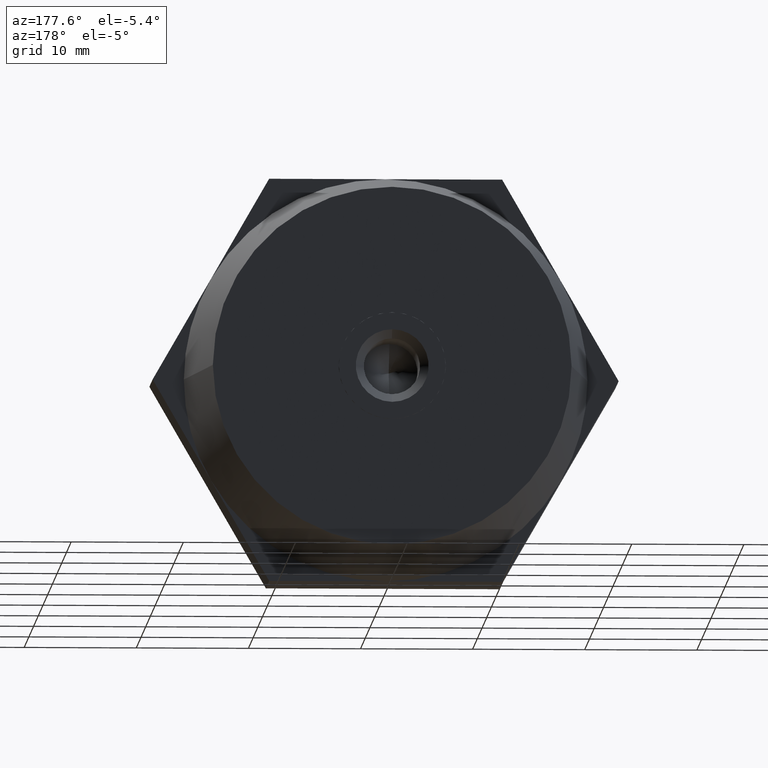
[diagram: clean part render]
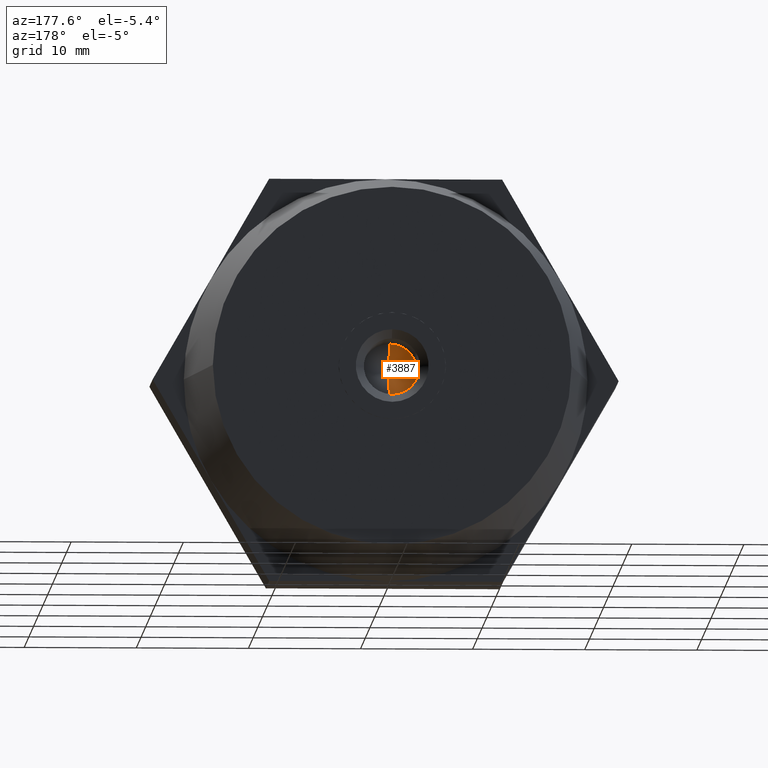
[diagram: same view with one face highlighted and labeled with its STEP entity id]
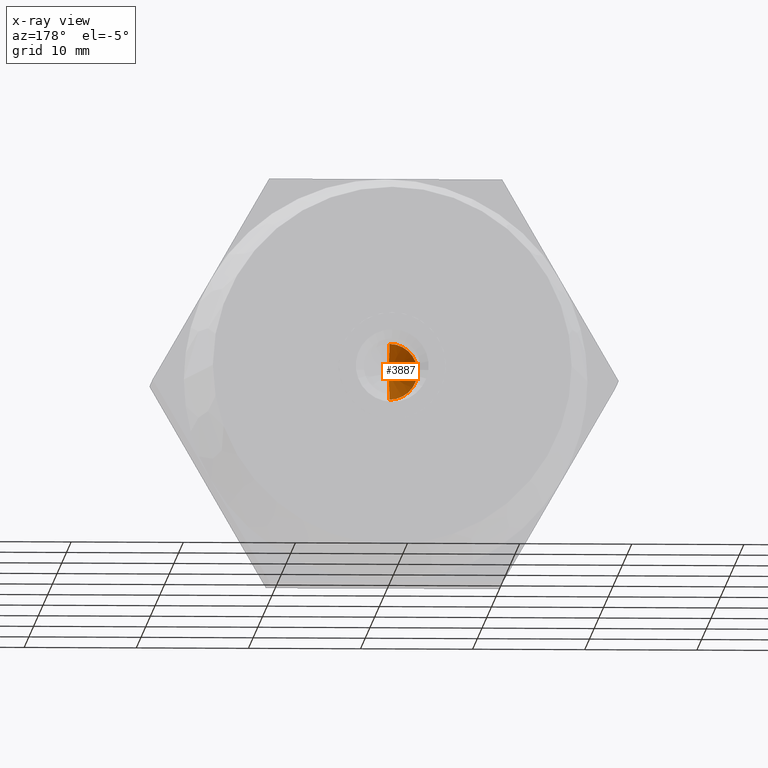
[diagram: x-ray of the same camera — body ghosted, the highlighted face saturated]
A machine part, auxiliary view. The second image highlights one B-rep face of the part: STEP entity #3887.
The next image is the same camera in x-ray: the body ghosted, the highlighted face saturated — about 0% of this face is hidden behind the body in this view.
In plain terms, the highlighted conical surface has half-angle 59 deg.
Its self-contained STEP definition (entity closure, byte-faithful):
#306 = CARTESIAN_POINT ( 'NONE',  ( -1.837497175889724800E-015, 0.4978484524310979900, 0.0000000000000000000 ) ) ;
#450 = DIRECTION ( 'NONE',  ( 1.049727191138618200E-016, 0.5150380749100549300, -0.8571673007021118900 ) ) ;
#613 = AXIS2_PLACEMENT_3D ( 'NONE', #953, #2167, #928 ) ;
#636 = VERTEX_POINT ( 'NONE', #1362 ) ;
#638 = CARTESIAN_POINT ( 'NONE',  ( 0.0000000000000000000, 2.000000000000000000, 2.500000000000000000 ) ) ;
#747 = CARTESIAN_POINT ( 'NONE',  ( 3.061616997868383100E-016, 2.000000000000000000, -2.500000000000000000 ) ) ;
#862 = VECTOR ( 'NONE', #450, 999.9999999999998900 ) ;
#890 = DIRECTION ( 'NONE',  ( 0.0000000000000000000, 1.000000000000000000, 0.0000000000000000000 ) ) ;
#908 = VECTOR ( 'NONE', #3636, 999.9999999999998900 ) ;
#928 = DIRECTION ( 'NONE',  ( 0.0000000000000000000, 0.0000000000000000000, 1.000000000000000000 ) ) ;
#953 = CARTESIAN_POINT ( 'NONE',  ( 0.0000000000000000000, 2.000000000000000000, 0.0000000000000000000 ) ) ;
#1362 = CARTESIAN_POINT ( 'NONE',  ( 0.0000000000000000000, 2.000000000000000000, 2.500000000000000000 ) ) ;
#1389 = CONICAL_SURFACE ( 'NONE', #3649, 2.500000000000000000, 1.029744258676653600 ) ;
#1542 = LINE ( 'NONE', #638, #908 ) ;
#1645 = ORIENTED_EDGE ( 'NONE', *, *, #2658, .T. ) ;
#1738 = ORIENTED_EDGE ( 'NONE', *, *, #3858, .F. ) ;
#1884 = CARTESIAN_POINT ( 'NONE',  ( 3.061616997868383100E-016, 2.000000000000000000, -2.500000000000000000 ) ) ;
#2167 = DIRECTION ( 'NONE',  ( 0.0000000000000000000, 1.000000000000000000, 0.0000000000000000000 ) ) ;
#2451 = ORIENTED_EDGE ( 'NONE', *, *, #2990, .T. ) ;
#2658 = EDGE_CURVE ( 'NONE', #2763, #636, #3302, .T. ) ;
#2673 = CARTESIAN_POINT ( 'NONE',  ( 0.0000000000000000000, 2.000000000000000000, 0.0000000000000000000 ) ) ;
#2763 = VERTEX_POINT ( 'NONE', #1884 ) ;
#2811 = EDGE_LOOP ( 'NONE', ( #1738, #2451, #1645 ) ) ;
#2935 = LINE ( 'NONE', #747, #862 ) ;
#2990 = EDGE_CURVE ( 'NONE', #3793, #2763, #2935, .T. ) ;
#3070 = FACE_OUTER_BOUND ( 'NONE', #2811, .T. ) ;
#3288 = DIRECTION ( 'NONE',  ( 0.0000000000000000000, 0.0000000000000000000, 1.000000000000000000 ) ) ;
#3302 = CIRCLE ( 'NONE', #613, 2.500000000000000000 ) ;
#3636 = DIRECTION ( 'NONE',  ( 0.0000000000000000000, 0.5150380749100549300, 0.8571673007021118900 ) ) ;
#3649 = AXIS2_PLACEMENT_3D ( 'NONE', #2673, #890, #3288 ) ;
#3793 = VERTEX_POINT ( 'NONE', #306 ) ;
#3858 = EDGE_CURVE ( 'NONE', #3793, #636, #1542, .T. ) ;
#3887 = ADVANCED_FACE ( 'NONE', ( #3070 ), #1389, .F. ) ;